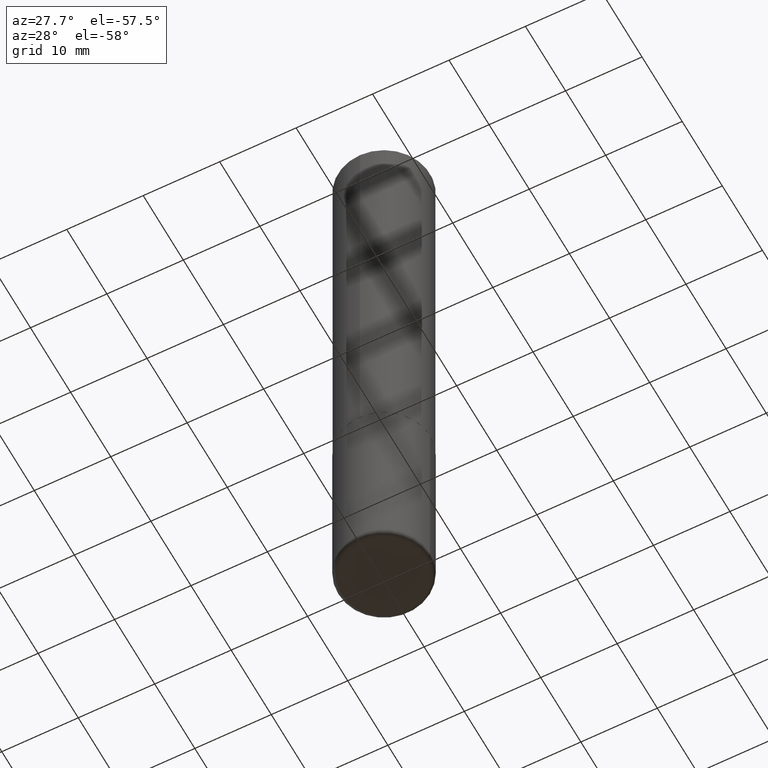
[diagram: clean part render]
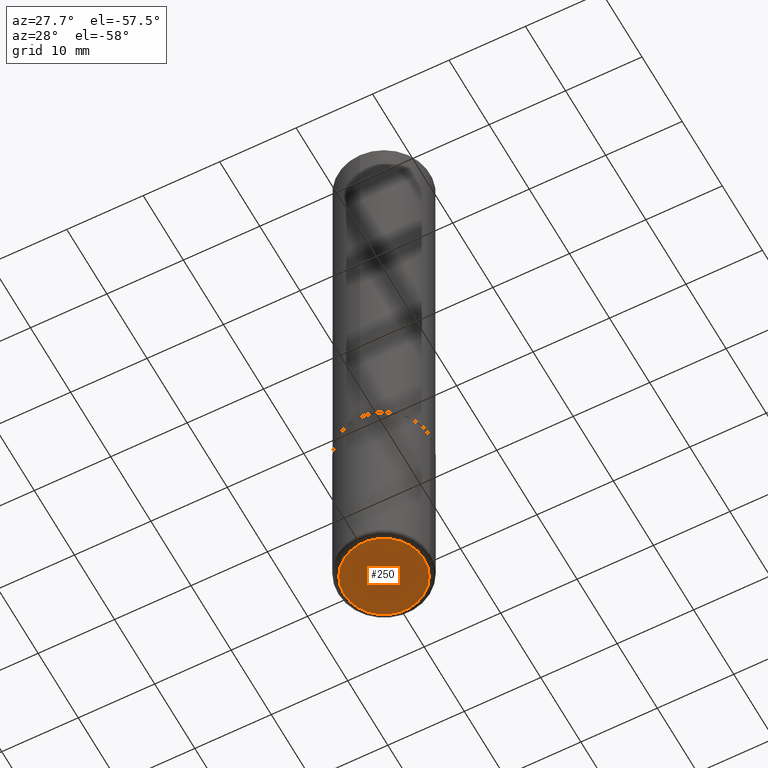
[diagram: same view with one face highlighted and labeled with its STEP entity id]
A machine part, auxiliary view. The second image highlights one B-rep face of the part: STEP entity #250.
In plain terms, the highlighted planar face has unit normal (0, -0, -1).
Its self-contained STEP definition (entity closure, byte-faithful):
#5 = CIRCLE ( 'NONE', #233, 0.2062000000000000222 ) ;
#7 = DIRECTION ( 'NONE',  ( -1.000000000000000000, 6.982962677686265922E-15, -4.876176775795935793E-29 ) ) ;
#15 = DIRECTION ( 'NONE',  ( -2.445468806185136597E-29, 3.491481338843145583E-15, 1.000000000000000000 ) ) ;
#32 = DIRECTION ( 'NONE',  ( 1.000000000000000000, -6.982962677686262766E-15, 0.000000000000000000 ) ) ;
#69 = DIRECTION ( 'NONE',  ( 2.438088387897960049E-29, -3.491481338843145188E-15, -1.000000000000000000 ) ) ;
#97 = EDGE_CURVE ( 'NONE', #127, #343, #407, .T. ) ;
#127 = VERTEX_POINT ( 'NONE', #170 ) ;
#135 = PLANE ( 'NONE',  #196 ) ;
#149 = EDGE_LOOP ( 'NONE', ( #354, #160 ) ) ;
#160 = ORIENTED_EDGE ( 'NONE', *, *, #379, .F. ) ;
#170 = CARTESIAN_POINT ( 'NONE',  ( 0.2062000000000000222, -1.284900047507665465E-14, -3.267700000000000049 ) ) ;
#196 = AXIS2_PLACEMENT_3D ( 'NONE', #260, #69, #7 ) ;
#232 = AXIS2_PLACEMENT_3D ( 'NONE', #415, #318, #32 ) ;
#233 = AXIS2_PLACEMENT_3D ( 'NONE', #397, #15, #370 ) ;
#242 = CARTESIAN_POINT ( 'NONE',  ( -0.2062000000000000222, -9.785020819353759273E-15, -3.267700000000000049 ) ) ;
#250 = ADVANCED_FACE ( 'NONE', ( #392 ), #135, .T. ) ;
#260 = CARTESIAN_POINT ( 'NONE',  ( 7.991058417971171713E-29, -1.140911357093774644E-14, -3.267700000000000049 ) ) ;
#318 = DIRECTION ( 'NONE',  ( -2.445468806185136597E-29, 3.491481338843145583E-15, 1.000000000000000000 ) ) ;
#343 = VERTEX_POINT ( 'NONE', #242 ) ;
#354 = ORIENTED_EDGE ( 'NONE', *, *, #97, .F. ) ;
#370 = DIRECTION ( 'NONE',  ( 1.000000000000000000, -6.982962677686262766E-15, 0.000000000000000000 ) ) ;
#379 = EDGE_CURVE ( 'NONE', #343, #127, #5, .T. ) ;
#392 = FACE_OUTER_BOUND ( 'NONE', #149, .T. ) ;
#397 = CARTESIAN_POINT ( 'NONE',  ( 7.991058417971171713E-29, -1.140911357093774644E-14, -3.267700000000000049 ) ) ;
#407 = CIRCLE ( 'NONE', #232, 0.2062000000000000222 ) ;
#415 = CARTESIAN_POINT ( 'NONE',  ( 7.991058417971171713E-29, -1.140911357093774644E-14, -3.267700000000000049 ) ) ;